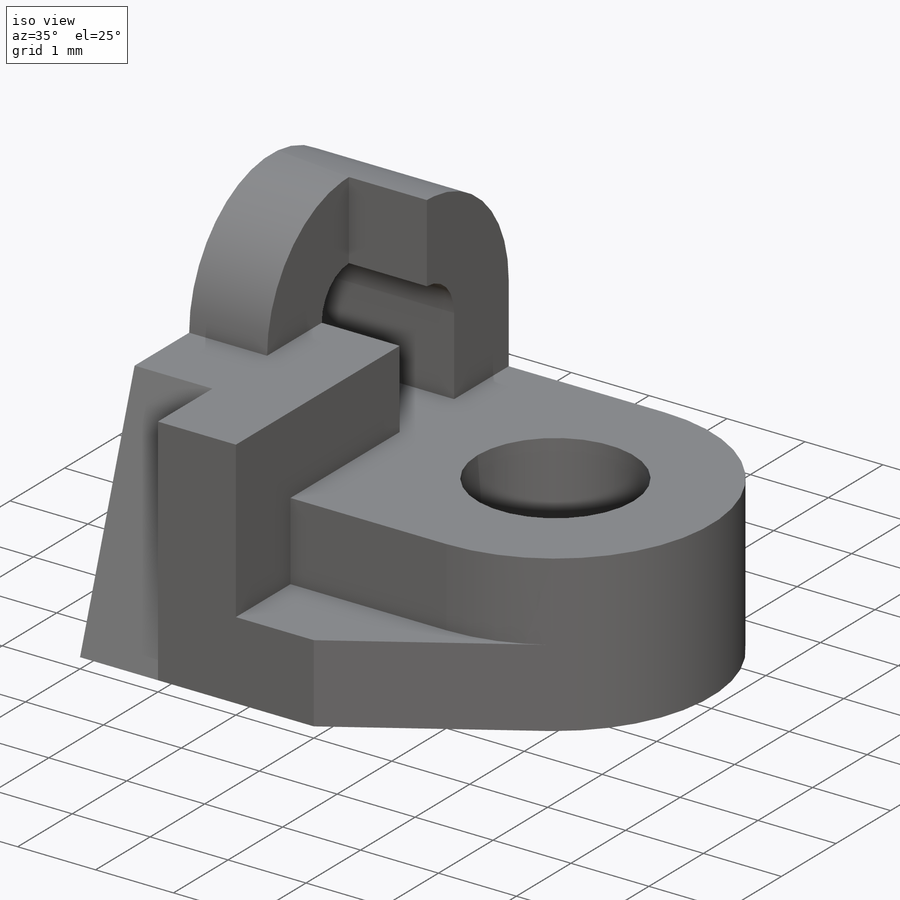
[diagram: iso view]
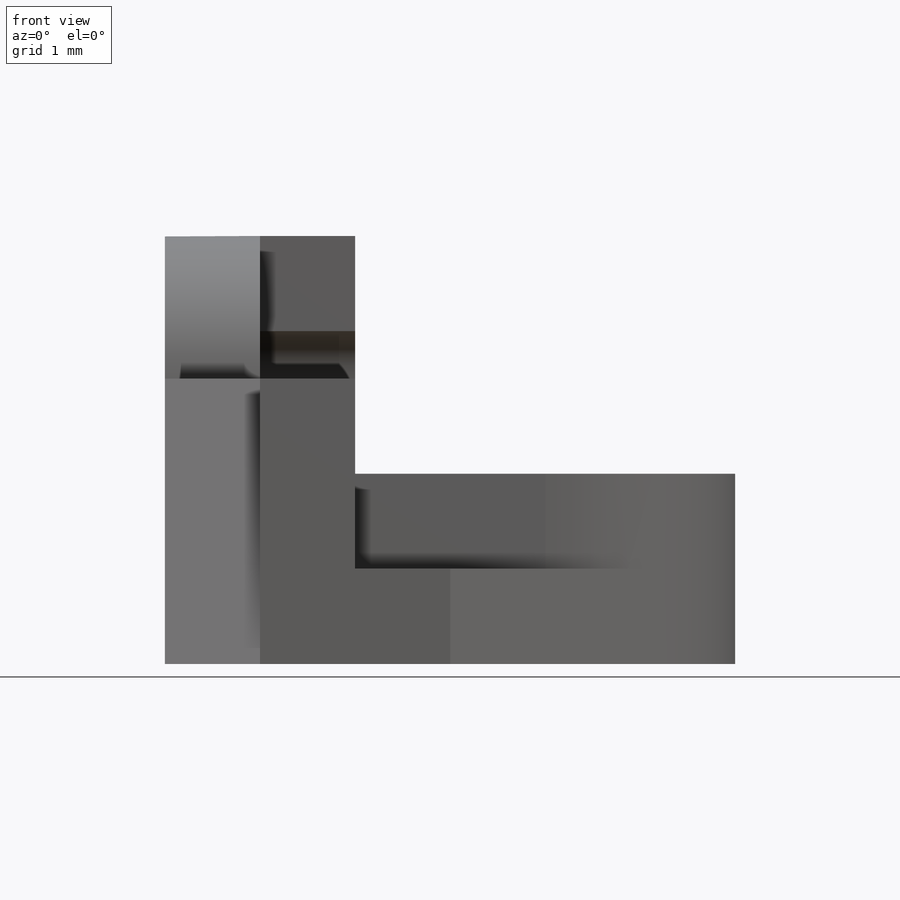
[diagram: front view]
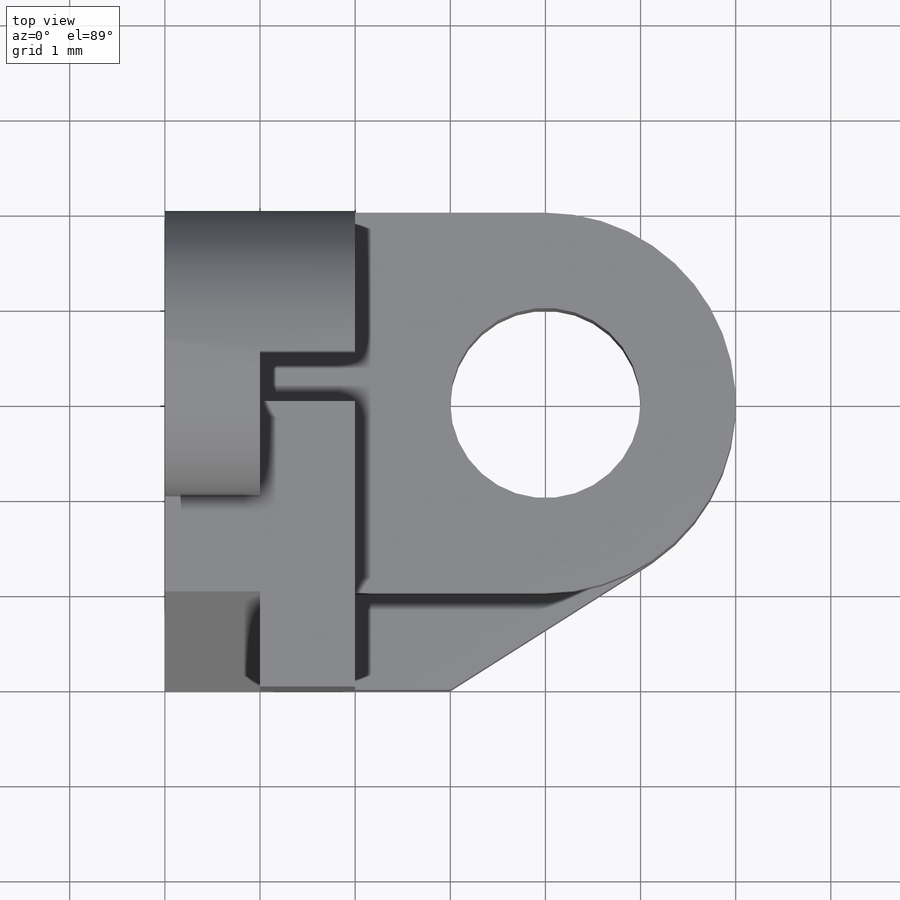
[diagram: top view]
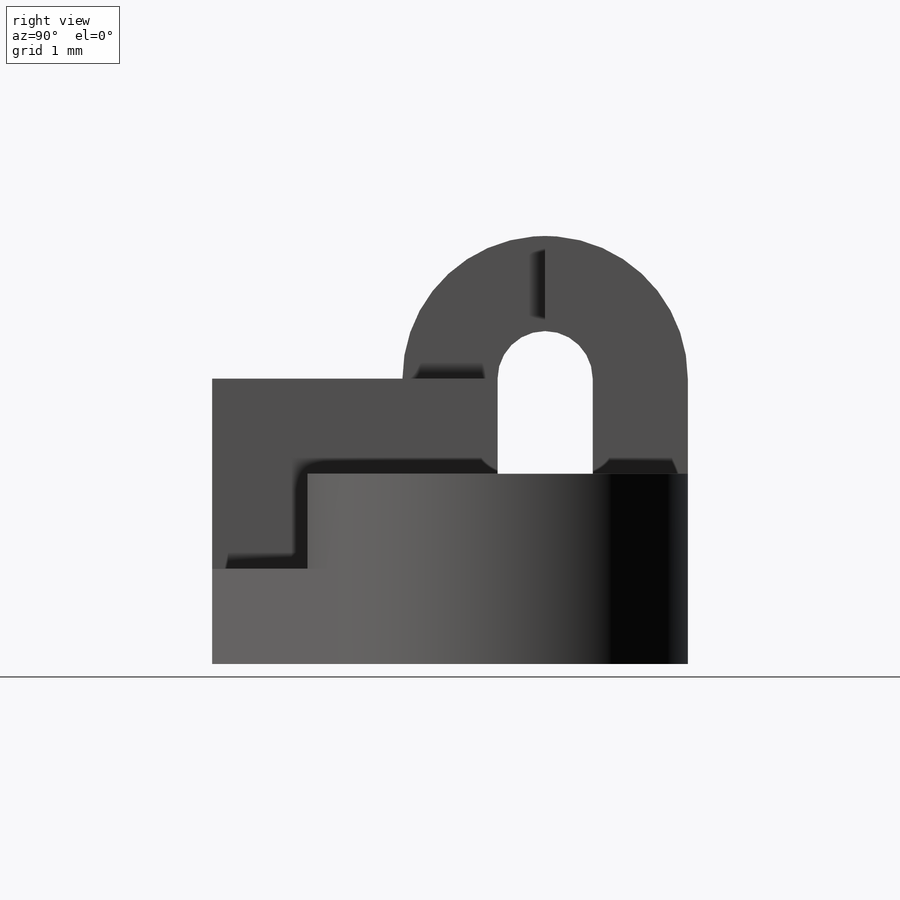
[diagram: right view]
SOLIDWORKS PART (.sldprt)
format: sldprt  version: not decoded by parser v0  size: 275,456 bytes
history: native  units: mm
features: sketch x10, extrude x7, cut_extrude x3, material x1 (+13 scaffold rows collapsed)
feature tree (34):
  scaffold x13  (default folders/planes/origin — collapsed)
  material  "Material <not specified>"
  sketch  "Sketch1"  dims[D1=4.0mm D2=2.0mm]
  extrude  "Boss-Extrude1"  Depth=4mm
  sketch  "Sketch2"  dims[D1=2.0mm]
  extrude  "Boss-Extrude2"  Depth=2mm
  sketch  "Sketch3"  dims[D1=2.0mm]
  cut_extrude  "Cut-Extrude1"  [1 undecoded]
  sketch  "Sketch4"  dims[D1=1.0mm D2=1.0mm D3=1.0mm D4=1.0mm D5=1.0mm D6=2.0mm D7=1.0mm]
  extrude  "Boss-Extrude4"  Depth=2mm
  sketch  "Sketch7"
  cut_extrude  "Cut-Extrude2"  Depth=1mm
  sketch  "Sketch8"  dims[D1=1.0mm]
  extrude  "Boss-Extrude5"  Depth=2mm
  sketch  "Sketch9"
  cut_extrude  "Cut-Extrude3"  Depth=1mm
  sketch  "Sketch10"  dims[D1=1.0mm]
  extrude  "Boss-Extrude6"  Depth=1mm
  sketch  "Sketch11"
  extrude  "Boss-Extrude7"  Depth=1mm
  sketch  "Sketch12"
  extrude  "Boss-Extrude8"  Depth=1mm
decode coverage: 15 of 20 modeling features carry decoded parameters
note: 1 parameter value undecoded
note: suppression state not decoded; provenance and decode notes live in map.json
